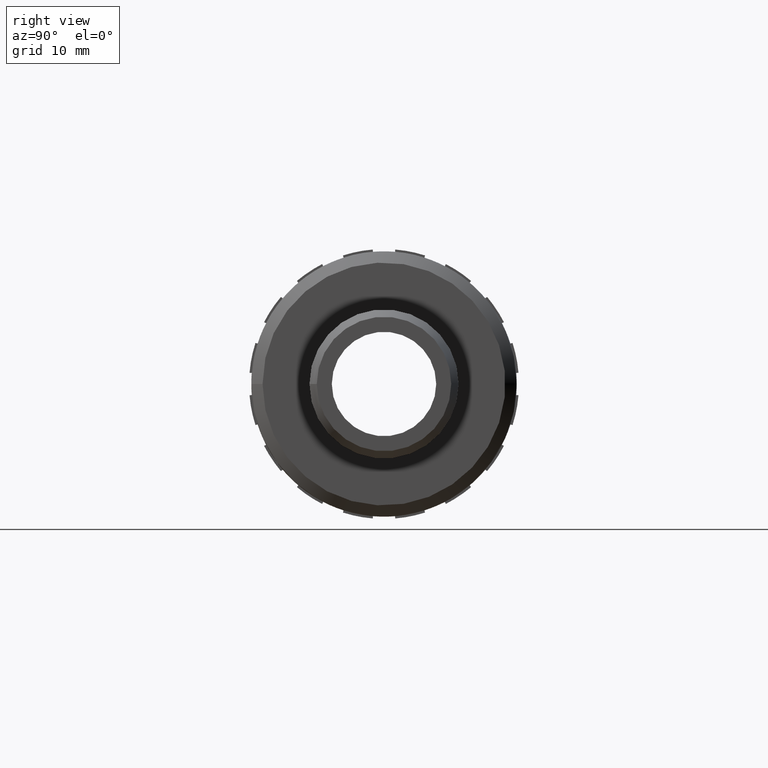
[diagram: clean part render]
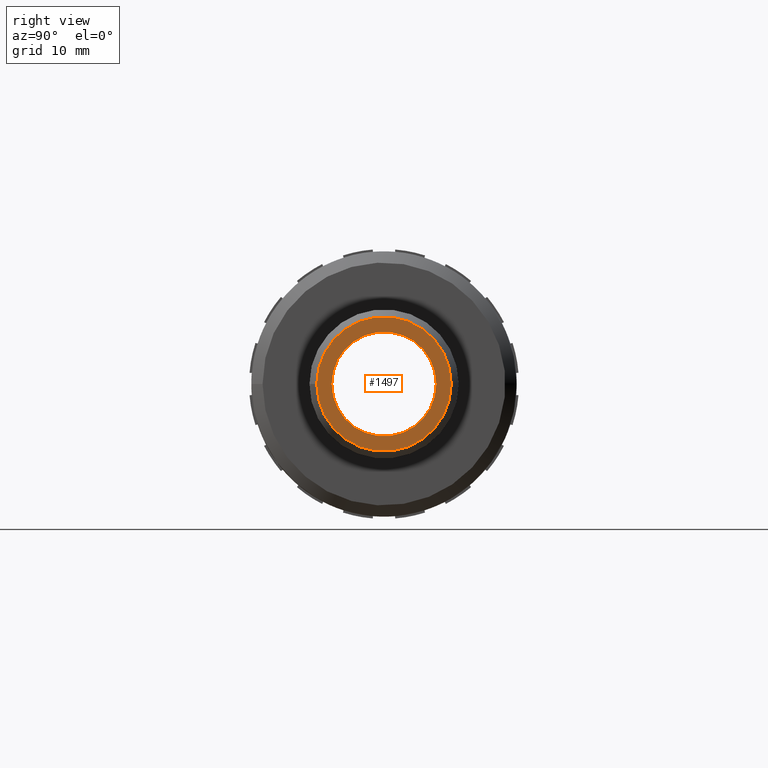
[diagram: same view with one face highlighted and labeled with its STEP entity id]
A machine part, right view. The second image highlights one B-rep face of the part: STEP entity #1497.
In plain terms, the highlighted planar face has unit normal (1, 0, 0).
Its self-contained STEP definition (entity closure, byte-faithful):
#49=FACE_BOUND('',#308,.T.);
#132=CIRCLE('',#1653,5.6);
#133=CIRCLE('',#1655,7.21240615283552);
#216=FACE_OUTER_BOUND('',#307,.T.);
#307=EDGE_LOOP('',(#1343));
#308=EDGE_LOOP('',(#1344));
#723=VERTEX_POINT('',#2547);
#724=VERTEX_POINT('',#2550);
#934=EDGE_CURVE('',#723,#723,#132,.T.);
#935=EDGE_CURVE('',#724,#724,#133,.T.);
#1343=ORIENTED_EDGE('',*,*,#935,.F.);
#1344=ORIENTED_EDGE('',*,*,#934,.T.);
#1420=PLANE('',#1654);
#1497=ADVANCED_FACE('',(#216,#49),#1420,.T.);
#1653=AXIS2_PLACEMENT_3D('',#2548,#2091,#2092);
#1654=AXIS2_PLACEMENT_3D('',#2549,#2093,#2094);
#1655=AXIS2_PLACEMENT_3D('',#2551,#2095,#2096);
#2091=DIRECTION('center_axis',(-1.,0.,0.));
#2092=DIRECTION('ref_axis',(0.,0.,1.));
#2093=DIRECTION('center_axis',(1.,0.,0.));
#2094=DIRECTION('ref_axis',(0.,0.,-1.));
#2095=DIRECTION('center_axis',(-1.,0.,0.));
#2096=DIRECTION('ref_axis',(0.,0.,1.));
#2547=CARTESIAN_POINT('',(67.,-5.6,0.));
#2548=CARTESIAN_POINT('Origin',(67.,0.,0.));
#2549=CARTESIAN_POINT('Origin',(67.,-7.21240615283552,0.));
#2550=CARTESIAN_POINT('',(67.,-7.21240615283552,0.));
#2551=CARTESIAN_POINT('Origin',(67.,0.,0.));